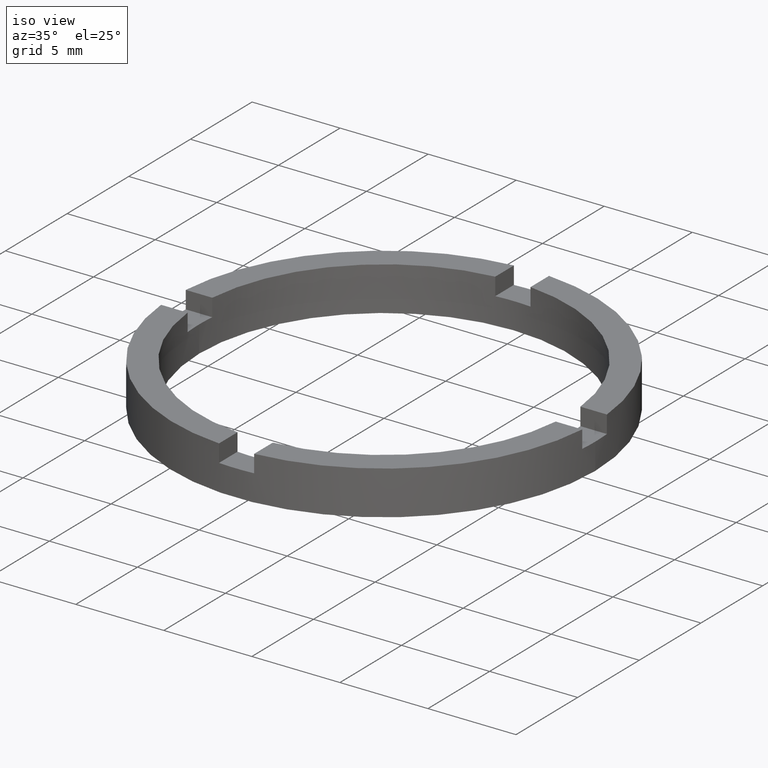
[diagram: clean part render]
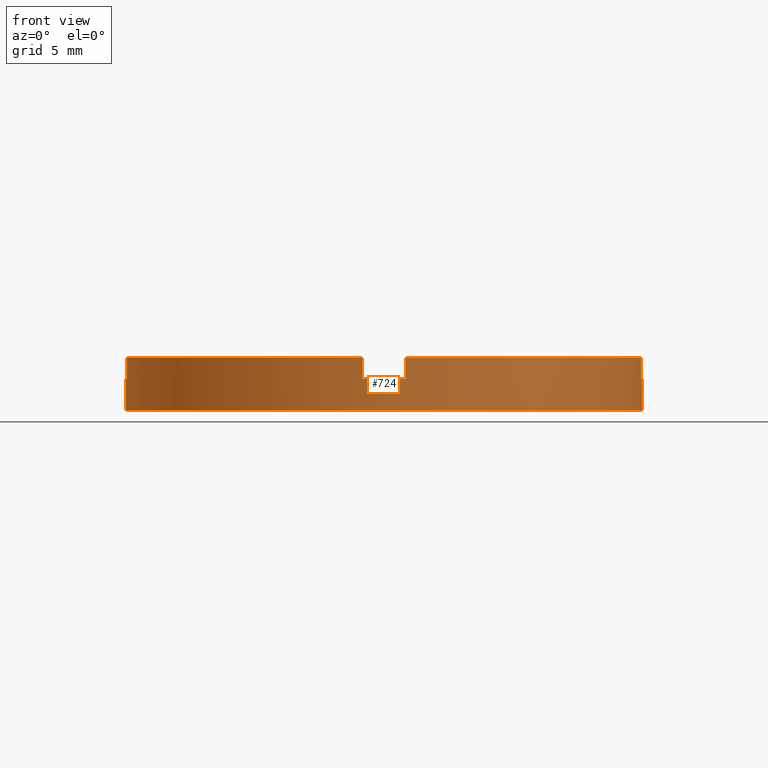
[diagram: tour spotlight — one face highlighted and labeled with its STEP entity id]
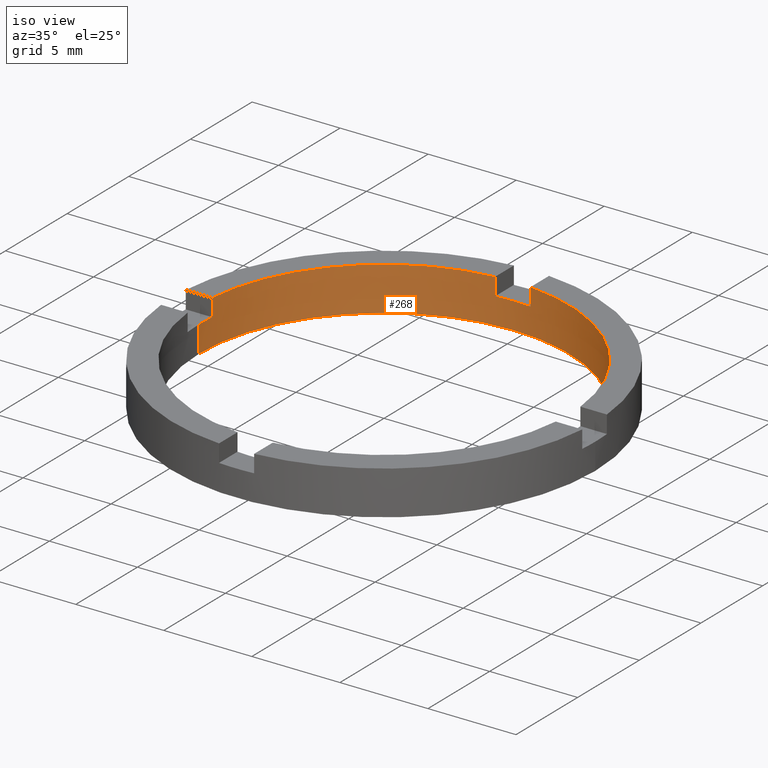
[diagram: tour spotlight — one face highlighted and labeled with its STEP entity id]
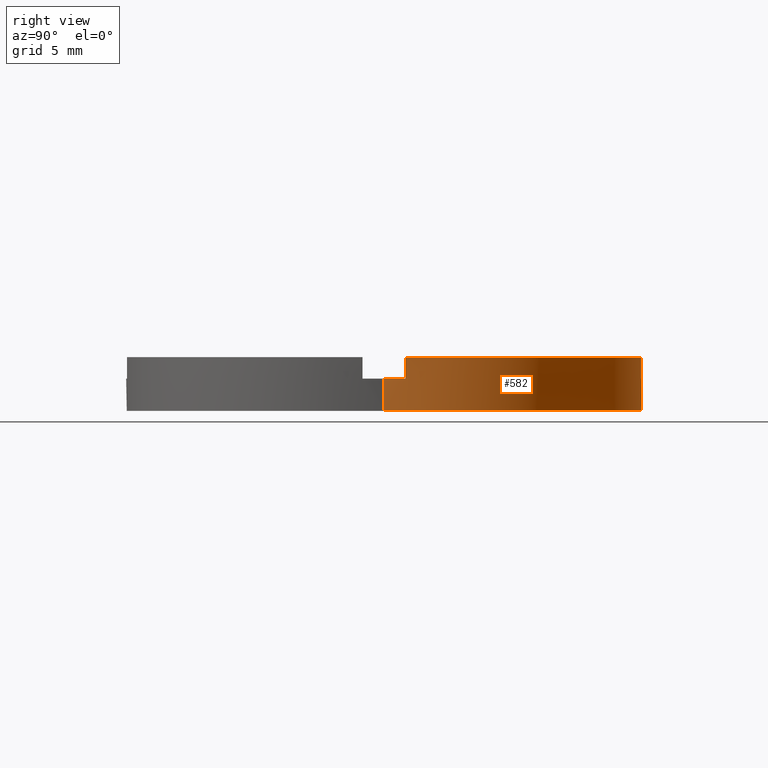
[diagram: tour spotlight — one face highlighted and labeled with its STEP entity id]
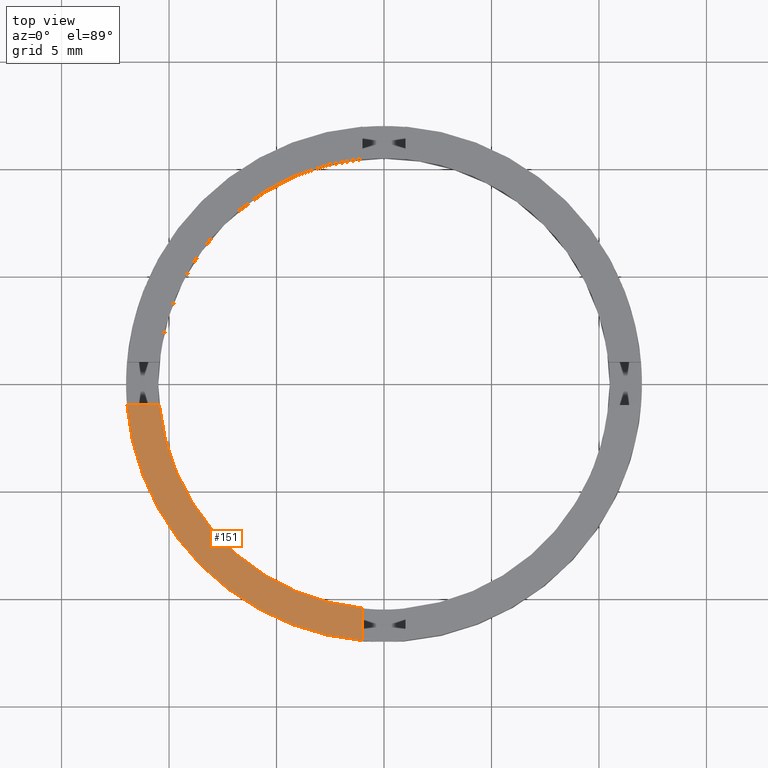
[diagram: tour spotlight — one face highlighted and labeled with its STEP entity id]
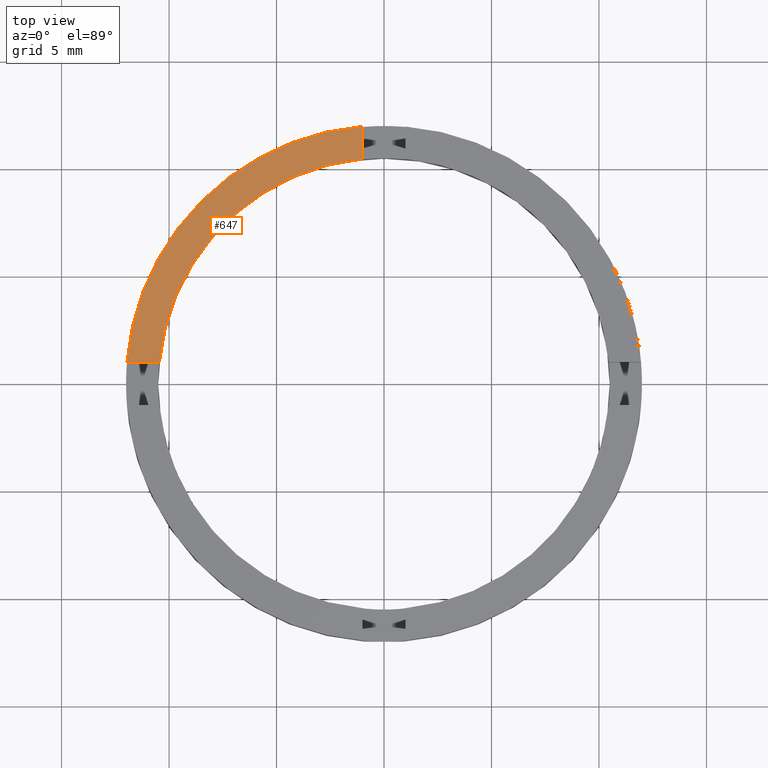
[diagram: tour spotlight — one face highlighted and labeled with its STEP entity id]
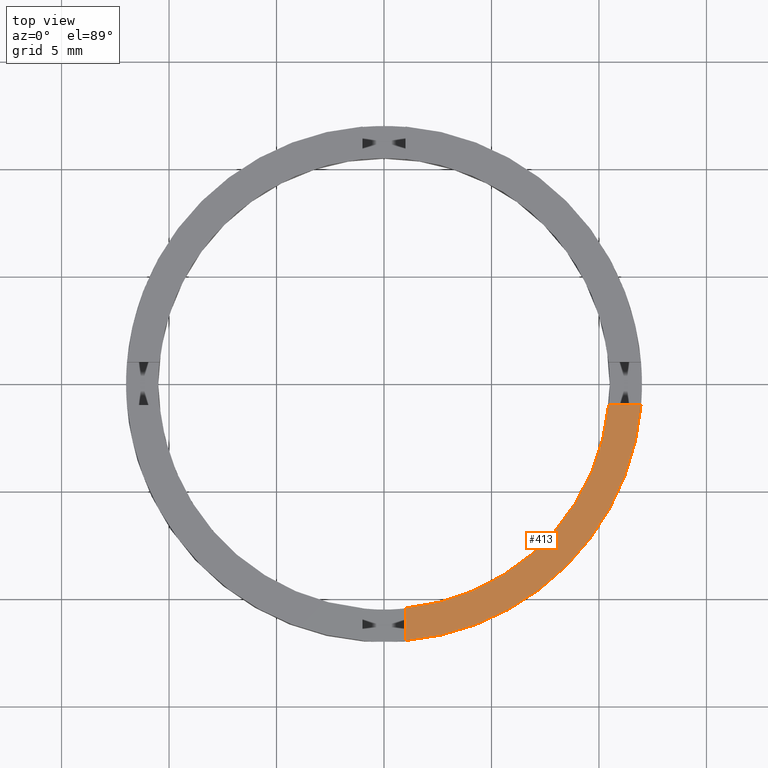
[diagram: tour spotlight — one face highlighted and labeled with its STEP entity id]
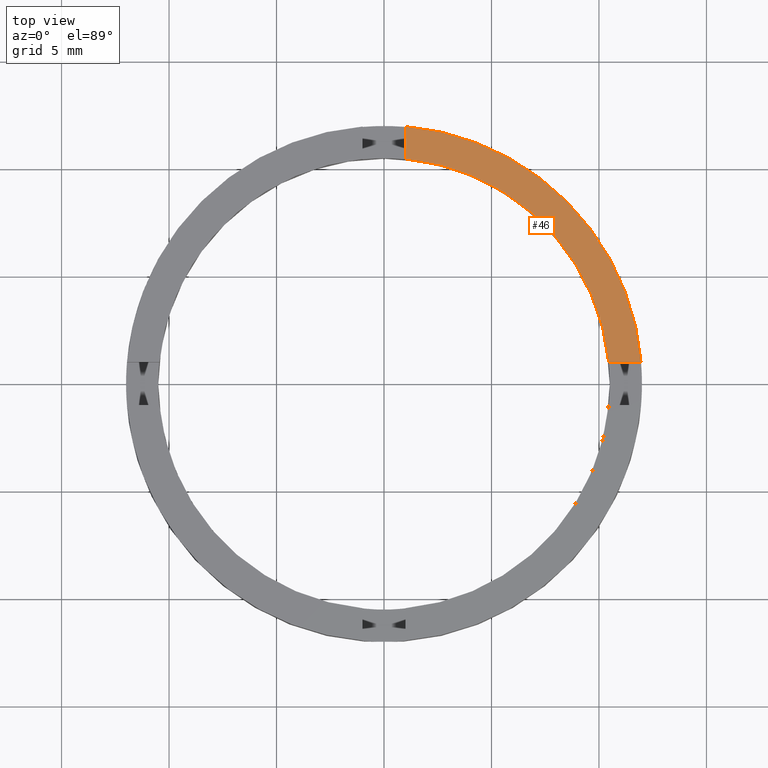
[diagram: tour spotlight — one face highlighted and labeled with its STEP entity id]
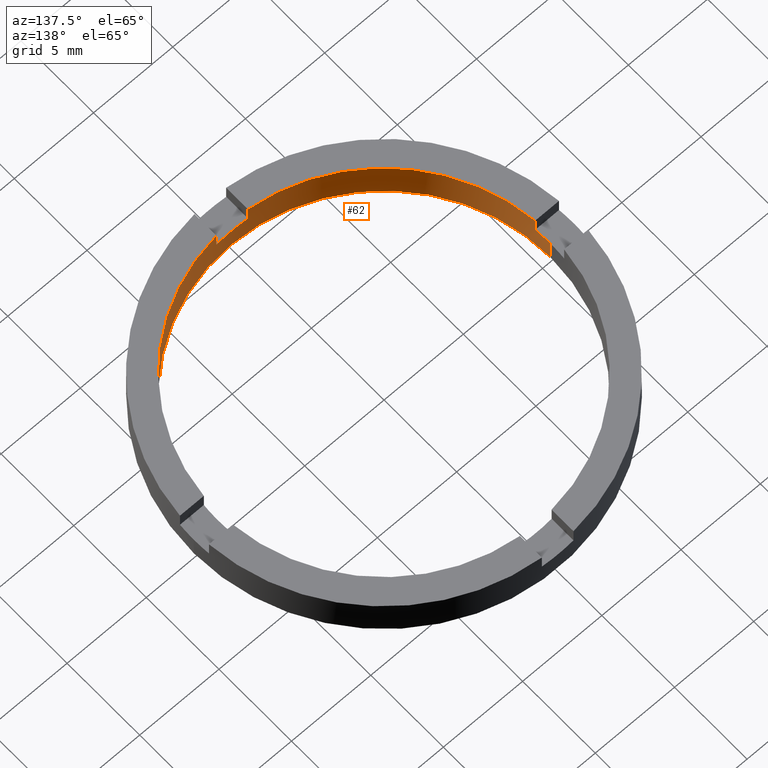
[diagram: tour spotlight — one face highlighted and labeled with its STEP entity id]
A machine part: a face-by-face anatomy tour. The part has 21 B-rep faces; the first image is the clean iso view, then the 8 largest visible faces are spotlighted one at a time (largest first), each with its STEP entity span.

Face 1 — front view, entity #724. In plain terms, the highlighted cylindrical surface (partial cylindrical patch) has radius 12 mm, axis along (-0, -0, -1).
Definition (entity closure, byte-faithful):
#5 = VERTEX_POINT ( 'NONE', #34 ) ;
#6 = CARTESIAN_POINT ( 'NONE',  ( 0.000000000000000000, 0.000000000000000000, 2.500000000000000000 ) ) ;
#15 = CIRCLE ( 'NONE', #560, 12.00000000000000178 ) ;
#18 = CYLINDRICAL_SURFACE ( 'NONE', #749, 12.00000000000000178 ) ;
#31 = FACE_OUTER_BOUND ( 'NONE', #100, .T. ) ;
#34 = CARTESIAN_POINT ( 'NONE',  ( 11.95826074310138765, -1.000000000000159872, 2.500000000000000000 ) ) ;
#70 = DIRECTION ( 'NONE',  ( -0.000000000000000000, -0.000000000000000000, -1.000000000000000000 ) ) ;
#80 = EDGE_CURVE ( 'NONE', #114, #352, #141, .T. ) ;
#84 = DIRECTION ( 'NONE',  ( 0.000000000000000000, 0.000000000000000000, 1.000000000000000000 ) ) ;
#86 = AXIS2_PLACEMENT_3D ( 'NONE', #6, #546, #194 ) ;
#91 = CARTESIAN_POINT ( 'NONE',  ( 0.000000000000000000, 0.000000000000000000, 2.500000000000000000 ) ) ;
#95 = CARTESIAN_POINT ( 'NONE',  ( -12.00000000000000178, 0.000000000000000000, 0.000000000000000000 ) ) ;
#99 = CARTESIAN_POINT ( 'NONE',  ( -11.95826074310139830, -1.000000000000022204, 2.500000000000000000 ) ) ;
#100 = EDGE_LOOP ( 'NONE', ( #773, #508, #345, #105, #613, #255, #623, #459, #248, #189, #411, #259 ) ) ;
#105 = ORIENTED_EDGE ( 'NONE', *, *, #373, .F. ) ;
#106 = CARTESIAN_POINT ( 'NONE',  ( 0.9999999999998363531, -11.95826074310141429, 1.500000000000000000 ) ) ;
#108 = CARTESIAN_POINT ( 'NONE',  ( 11.95826074310138765, -1.000000000000159872, 2.500000000000000000 ) ) ;
#114 = VERTEX_POINT ( 'NONE', #570 ) ;
#133 = CARTESIAN_POINT ( 'NONE',  ( -12.00000000000000178, 0.000000000000000000, 2.500000000000000000 ) ) ;
#135 = LINE ( 'NONE', #339, #153 ) ;
#140 = CIRCLE ( 'NONE', #86, 12.00000000000000178 ) ;
#141 = CIRCLE ( 'NONE', #654, 12.00000000000000178 ) ;
#153 = VECTOR ( 'NONE', #500, 1000.000000000000000 ) ;
#165 = VECTOR ( 'NONE', #70, 1000.000000000000000 ) ;
#175 = VERTEX_POINT ( 'NONE', #235 ) ;
#189 = ORIENTED_EDGE ( 'NONE', *, *, #309, .F. ) ;
#193 = DIRECTION ( 'NONE',  ( -0.000000000000000000, -0.000000000000000000, -1.000000000000000000 ) ) ;
#194 = DIRECTION ( 'NONE',  ( 1.000000000000000000, 0.000000000000000000, 0.000000000000000000 ) ) ;
#201 = DIRECTION ( 'NONE',  ( 0.000000000000000000, 0.000000000000000000, 1.000000000000000000 ) ) ;
#224 = CARTESIAN_POINT ( 'NONE',  ( -12.00000000000000178, 0.000000000000000000, 1.500000000000000000 ) ) ;
#231 = DIRECTION ( 'NONE',  ( 0.000000000000000000, 0.000000000000000000, 1.000000000000000000 ) ) ;
#233 = AXIS2_PLACEMENT_3D ( 'NONE', #502, #515, #572 ) ;
#234 = VERTEX_POINT ( 'NONE', #629 ) ;
#235 = CARTESIAN_POINT ( 'NONE',  ( -1.000000000000163647, -11.95826074310138765, 2.500000000000000000 ) ) ;
#238 = DIRECTION ( 'NONE',  ( -1.000000000000000000, 0.000000000000000000, 0.000000000000000000 ) ) ;
#248 = ORIENTED_EDGE ( 'NONE', *, *, #466, .T. ) ;
#255 = ORIENTED_EDGE ( 'NONE', *, *, #80, .F. ) ;
#259 = ORIENTED_EDGE ( 'NONE', *, *, #750, .T. ) ;
#269 = VERTEX_POINT ( 'NONE', #523 ) ;
#271 = VERTEX_POINT ( 'NONE', #224 ) ;
#277 = DIRECTION ( 'NONE',  ( -0.000000000000000000, 0.000000000000000000, 1.000000000000000000 ) ) ;
#284 = EDGE_CURVE ( 'NONE', #234, #5, #669, .T. ) ;
#290 = AXIS2_PLACEMENT_3D ( 'NONE', #91, #297, #335 ) ;
#297 = DIRECTION ( 'NONE',  ( 0.000000000000000000, 0.000000000000000000, 1.000000000000000000 ) ) ;
#301 = CARTESIAN_POINT ( 'NONE',  ( 0.000000000000000000, 0.000000000000000000, 2.500000000000000000 ) ) ;
#303 = DIRECTION ( 'NONE',  ( 1.000000000000000000, 0.000000000000000000, 0.000000000000000000 ) ) ;
#309 = EDGE_CURVE ( 'NONE', #271, #269, #676, .T. ) ;
#310 = LINE ( 'NONE', #573, #568 ) ;
#319 = EDGE_CURVE ( 'NONE', #357, #175, #410, .T. ) ;
#334 = CARTESIAN_POINT ( 'NONE',  ( 12.00000000000000178, 1.469576158976824144E-15, 0.000000000000000000 ) ) ;
#335 = DIRECTION ( 'NONE',  ( 1.000000000000000000, 0.000000000000000000, 0.000000000000000000 ) ) ;
#339 = CARTESIAN_POINT ( 'NONE',  ( 0.9999999999998363531, -11.95826074310141429, 2.500000000000000000 ) ) ;
#345 = ORIENTED_EDGE ( 'NONE', *, *, #284, .T. ) ;
#352 = VERTEX_POINT ( 'NONE', #106 ) ;
#357 = VERTEX_POINT ( 'NONE', #99 ) ;
#373 = EDGE_CURVE ( 'NONE', #607, #5, #140, .T. ) ;
#380 = EDGE_CURVE ( 'NONE', #607, #352, #135, .T. ) ;
#386 = LINE ( 'NONE', #133, #653 ) ;
#410 = CIRCLE ( 'NONE', #290, 12.00000000000000178 ) ;
#411 = ORIENTED_EDGE ( 'NONE', *, *, #571, .T. ) ;
#440 = CIRCLE ( 'NONE', #233, 12.00000000000000178 ) ;
#459 = ORIENTED_EDGE ( 'NONE', *, *, #319, .F. ) ;
#461 = VERTEX_POINT ( 'NONE', #95 ) ;
#466 = EDGE_CURVE ( 'NONE', #357, #269, #683, .T. ) ;
#471 = VECTOR ( 'NONE', #231, 1000.000000000000000 ) ;
#492 = CARTESIAN_POINT ( 'NONE',  ( -11.95826074310139830, -1.000000000000022204, 2.500000000000000000 ) ) ;
#500 = DIRECTION ( 'NONE',  ( -0.000000000000000000, -0.000000000000000000, -1.000000000000000000 ) ) ;
#502 = CARTESIAN_POINT ( 'NONE',  ( 0.000000000000000000, 0.000000000000000000, 1.500000000000000000 ) ) ;
#508 = ORIENTED_EDGE ( 'NONE', *, *, #536, .F. ) ;
#513 = CARTESIAN_POINT ( 'NONE',  ( 0.000000000000000000, 0.000000000000000000, 1.500000000000000000 ) ) ;
#515 = DIRECTION ( 'NONE',  ( 0.000000000000000000, 0.000000000000000000, 1.000000000000000000 ) ) ;
#523 = CARTESIAN_POINT ( 'NONE',  ( -11.95826074310139830, -1.000000000000022204, 1.500000000000000000 ) ) ;
#536 = EDGE_CURVE ( 'NONE', #234, #604, #440, .T. ) ;
#546 = DIRECTION ( 'NONE',  ( 0.000000000000000000, 0.000000000000000000, 1.000000000000000000 ) ) ;
#549 = CARTESIAN_POINT ( 'NONE',  ( 0.000000000000000000, 0.000000000000000000, 0.000000000000000000 ) ) ;
#560 = AXIS2_PLACEMENT_3D ( 'NONE', #549, #594, #303 ) ;
#565 = DIRECTION ( 'NONE',  ( 1.000000000000000000, 0.000000000000000000, 0.000000000000000000 ) ) ;
#568 = VECTOR ( 'NONE', #767, 1000.000000000000000 ) ;
#570 = CARTESIAN_POINT ( 'NONE',  ( -1.000000000000163647, -11.95826074310138765, 1.500000000000000000 ) ) ;
#571 = EDGE_CURVE ( 'NONE', #271, #461, #386, .T. ) ;
#572 = DIRECTION ( 'NONE',  ( 1.000000000000000000, 0.000000000000000000, 0.000000000000000000 ) ) ;
#573 = CARTESIAN_POINT ( 'NONE',  ( 12.00000000000000178, 1.469576158976824144E-15, 2.500000000000000000 ) ) ;
#590 = AXIS2_PLACEMENT_3D ( 'NONE', #596, #84, #652 ) ;
#594 = DIRECTION ( 'NONE',  ( 0.000000000000000000, 0.000000000000000000, 1.000000000000000000 ) ) ;
#595 = EDGE_CURVE ( 'NONE', #114, #175, #734, .T. ) ;
#596 = CARTESIAN_POINT ( 'NONE',  ( 0.000000000000000000, 0.000000000000000000, 1.500000000000000000 ) ) ;
#604 = VERTEX_POINT ( 'NONE', #636 ) ;
#607 = VERTEX_POINT ( 'NONE', #769 ) ;
#613 = ORIENTED_EDGE ( 'NONE', *, *, #380, .T. ) ;
#614 = CARTESIAN_POINT ( 'NONE',  ( -1.000000000000163647, -11.95826074310138765, 2.500000000000000000 ) ) ;
#623 = ORIENTED_EDGE ( 'NONE', *, *, #595, .T. ) ;
#627 = DIRECTION ( 'NONE',  ( -0.000000000000000000, -0.000000000000000000, -1.000000000000000000 ) ) ;
#629 = CARTESIAN_POINT ( 'NONE',  ( 11.95826074310138765, -1.000000000000159872, 1.500000000000000000 ) ) ;
#636 = CARTESIAN_POINT ( 'NONE',  ( 12.00000000000000178, 1.469576158976824144E-15, 1.500000000000000000 ) ) ;
#652 = DIRECTION ( 'NONE',  ( 1.000000000000000000, 0.000000000000000000, 0.000000000000000000 ) ) ;
#653 = VECTOR ( 'NONE', #627, 1000.000000000000000 ) ;
#654 = AXIS2_PLACEMENT_3D ( 'NONE', #513, #277, #565 ) ;
#656 = EDGE_CURVE ( 'NONE', #604, #710, #310, .T. ) ;
#669 = LINE ( 'NONE', #108, #701 ) ;
#676 = CIRCLE ( 'NONE', #590, 12.00000000000000178 ) ;
#683 = LINE ( 'NONE', #492, #165 ) ;
#701 = VECTOR ( 'NONE', #201, 1000.000000000000000 ) ;
#710 = VERTEX_POINT ( 'NONE', #334 ) ;
#724 = ADVANCED_FACE ( 'NONE', ( #31 ), #18, .T. ) ;
#734 = LINE ( 'NONE', #614, #471 ) ;
#749 = AXIS2_PLACEMENT_3D ( 'NONE', #301, #193, #238 ) ;
#750 = EDGE_CURVE ( 'NONE', #461, #710, #15, .T. ) ;
#767 = DIRECTION ( 'NONE',  ( -0.000000000000000000, -0.000000000000000000, -1.000000000000000000 ) ) ;
#769 = CARTESIAN_POINT ( 'NONE',  ( 0.9999999999998363531, -11.95826074310141429, 2.500000000000000000 ) ) ;
#773 = ORIENTED_EDGE ( 'NONE', *, *, #656, .F. ) ;

Face 2 — iso view, entity #268. In plain terms, the highlighted cylindrical surface (partial cylindrical patch) has radius 10.5 mm, axis along (-0, -0, -1).
Definition (entity closure, byte-faithful):
#4 = EDGE_LOOP ( 'NONE', ( #707, #517, #603, #670, #394, #700, #346, #362, #524, #426, #630, #94 ) ) ;
#17 = CIRCLE ( 'NONE', #315, 10.49999999999999822 ) ;
#28 = EDGE_CURVE ( 'NONE', #535, #104, #402, .T. ) ;
#30 = EDGE_CURVE ( 'NONE', #216, #609, #451, .T. ) ;
#42 = AXIS2_PLACEMENT_3D ( 'NONE', #331, #478, #403 ) ;
#48 = DIRECTION ( 'NONE',  ( -0.000000000000000000, -0.000000000000000000, -1.000000000000000000 ) ) ;
#51 = AXIS2_PLACEMENT_3D ( 'NONE', #587, #545, #296 ) ;
#55 = DIRECTION ( 'NONE',  ( 0.000000000000000000, 0.000000000000000000, 1.000000000000000000 ) ) ;
#61 = CARTESIAN_POINT ( 'NONE',  ( -1.000000000000024425, 10.45227248018343325, 1.500000000000000000 ) ) ;
#72 = VERTEX_POINT ( 'NONE', #462 ) ;
#94 = ORIENTED_EDGE ( 'NONE', *, *, #443, .F. ) ;
#97 = VERTEX_POINT ( 'NONE', #61 ) ;
#98 = DIRECTION ( 'NONE',  ( 1.000000000000000000, 0.000000000000000000, 0.000000000000000000 ) ) ;
#101 = DIRECTION ( 'NONE',  ( 0.000000000000000000, 0.000000000000000000, 1.000000000000000000 ) ) ;
#104 = VERTEX_POINT ( 'NONE', #519 ) ;
#117 = CARTESIAN_POINT ( 'NONE',  ( -10.49999999999999822, 0.000000000000000000, 0.000000000000000000 ) ) ;
#120 = DIRECTION ( 'NONE',  ( 1.000000000000000000, 0.000000000000000000, 0.000000000000000000 ) ) ;
#122 = CIRCLE ( 'NONE', #42, 10.49999999999999822 ) ;
#129 = CYLINDRICAL_SURFACE ( 'NONE', #470, 10.49999999999999822 ) ;
#131 = VECTOR ( 'NONE', #723, 1000.000000000000000 ) ;
#147 = LINE ( 'NONE', #420, #399 ) ;
#150 = VECTOR ( 'NONE', #383, 1000.000000000000000 ) ;
#157 = VECTOR ( 'NONE', #55, 1000.000000000000000 ) ;
#160 = CIRCLE ( 'NONE', #267, 10.49999999999999822 ) ;
#167 = CARTESIAN_POINT ( 'NONE',  ( 0.000000000000000000, 0.000000000000000000, 1.500000000000000000 ) ) ;
#170 = VECTOR ( 'NONE', #209, 1000.000000000000000 ) ;
#179 = EDGE_CURVE ( 'NONE', #753, #610, #147, .T. ) ;
#192 = EDGE_CURVE ( 'NONE', #531, #454, #452, .T. ) ;
#198 = DIRECTION ( 'NONE',  ( 1.000000000000000000, 0.000000000000000000, 0.000000000000000000 ) ) ;
#209 = DIRECTION ( 'NONE',  ( -0.000000000000000000, -0.000000000000000000, -1.000000000000000000 ) ) ;
#216 = VERTEX_POINT ( 'NONE', #217 ) ;
#217 = CARTESIAN_POINT ( 'NONE',  ( 0.9999999999999754641, 10.45227248018343680, 1.500000000000000000 ) ) ;
#220 = EDGE_CURVE ( 'NONE', #72, #419, #393, .T. ) ;
#243 = VERTEX_POINT ( 'NONE', #391 ) ;
#267 = AXIS2_PLACEMENT_3D ( 'NONE', #591, #715, #736 ) ;
#268 = ADVANCED_FACE ( 'NONE', ( #692 ), #129, .F. ) ;
#282 = CIRCLE ( 'NONE', #51, 10.49999999999999822 ) ;
#283 = CARTESIAN_POINT ( 'NONE',  ( 0.9999999999999754641, 10.45227248018343680, 2.500000000000000000 ) ) ;
#285 = CIRCLE ( 'NONE', #429, 10.49999999999999822 ) ;
#296 = DIRECTION ( 'NONE',  ( 1.000000000000000000, 0.000000000000000000, 0.000000000000000000 ) ) ;
#308 = CARTESIAN_POINT ( 'NONE',  ( -10.45227248018343680, 0.9999999999999783507, 1.500000000000000000 ) ) ;
#315 = AXIS2_PLACEMENT_3D ( 'NONE', #167, #493, #98 ) ;
#316 = EDGE_CURVE ( 'NONE', #243, #97, #404, .T. ) ;
#331 = CARTESIAN_POINT ( 'NONE',  ( 0.000000000000000000, 0.000000000000000000, 1.500000000000000000 ) ) ;
#346 = ORIENTED_EDGE ( 'NONE', *, *, #316, .F. ) ;
#349 = CARTESIAN_POINT ( 'NONE',  ( 10.49999999999999822, 1.285879139104720633E-15, 1.500000000000000000 ) ) ;
#351 = AXIS2_PLACEMENT_3D ( 'NONE', #356, #556, #120 ) ;
#356 = CARTESIAN_POINT ( 'NONE',  ( 0.000000000000000000, 0.000000000000000000, 0.000000000000000000 ) ) ;
#362 = ORIENTED_EDGE ( 'NONE', *, *, #684, .T. ) ;
#383 = DIRECTION ( 'NONE',  ( 0.000000000000000000, 0.000000000000000000, 1.000000000000000000 ) ) ;
#387 = CIRCLE ( 'NONE', #351, 10.49999999999999822 ) ;
#391 = CARTESIAN_POINT ( 'NONE',  ( -1.000000000000024425, 10.45227248018343325, 2.500000000000000000 ) ) ;
#393 = LINE ( 'NONE', #406, #131 ) ;
#394 = ORIENTED_EDGE ( 'NONE', *, *, #30, .F. ) ;
#399 = VECTOR ( 'NONE', #586, 1000.000000000000000 ) ;
#402 = LINE ( 'NONE', #744, #170 ) ;
#403 = DIRECTION ( 'NONE',  ( 1.000000000000000000, 0.000000000000000000, 0.000000000000000000 ) ) ;
#404 = LINE ( 'NONE', #776, #434 ) ;
#406 = CARTESIAN_POINT ( 'NONE',  ( -10.49999999999999822, 0.000000000000000000, 2.500000000000000000 ) ) ;
#419 = VERTEX_POINT ( 'NONE', #117 ) ;
#420 = CARTESIAN_POINT ( 'NONE',  ( 10.45227248018345101, 0.9999999999998402389, 2.500000000000000000 ) ) ;
#426 = ORIENTED_EDGE ( 'NONE', *, *, #563, .T. ) ;
#429 = AXIS2_PLACEMENT_3D ( 'NONE', #733, #101, #198 ) ;
#434 = VECTOR ( 'NONE', #48, 1000.000000000000000 ) ;
#443 = EDGE_CURVE ( 'NONE', #104, #419, #387, .T. ) ;
#451 = LINE ( 'NONE', #458, #157 ) ;
#452 = LINE ( 'NONE', #494, #150 ) ;
#454 = VERTEX_POINT ( 'NONE', #726 ) ;
#458 = CARTESIAN_POINT ( 'NONE',  ( 0.9999999999999754641, 10.45227248018343680, 2.500000000000000000 ) ) ;
#462 = CARTESIAN_POINT ( 'NONE',  ( -10.49999999999999822, 0.000000000000000000, 1.500000000000000000 ) ) ;
#470 = AXIS2_PLACEMENT_3D ( 'NONE', #474, #768, #574 ) ;
#474 = CARTESIAN_POINT ( 'NONE',  ( 0.000000000000000000, 0.000000000000000000, 2.500000000000000000 ) ) ;
#476 = EDGE_CURVE ( 'NONE', #753, #609, #160, .T. ) ;
#478 = DIRECTION ( 'NONE',  ( 0.000000000000000000, 0.000000000000000000, 1.000000000000000000 ) ) ;
#493 = DIRECTION ( 'NONE',  ( 0.000000000000000000, -0.000000000000000000, 1.000000000000000000 ) ) ;
#494 = CARTESIAN_POINT ( 'NONE',  ( -10.45227248018343680, 0.9999999999999783507, 2.500000000000000000 ) ) ;
#517 = ORIENTED_EDGE ( 'NONE', *, *, #746, .T. ) ;
#519 = CARTESIAN_POINT ( 'NONE',  ( 10.49999999999999822, 1.285879139104720633E-15, 0.000000000000000000 ) ) ;
#524 = ORIENTED_EDGE ( 'NONE', *, *, #192, .F. ) ;
#531 = VERTEX_POINT ( 'NONE', #308 ) ;
#535 = VERTEX_POINT ( 'NONE', #349 ) ;
#545 = DIRECTION ( 'NONE',  ( 0.000000000000000000, 0.000000000000000000, 1.000000000000000000 ) ) ;
#556 = DIRECTION ( 'NONE',  ( 0.000000000000000000, 0.000000000000000000, 1.000000000000000000 ) ) ;
#563 = EDGE_CURVE ( 'NONE', #531, #72, #122, .T. ) ;
#574 = DIRECTION ( 'NONE',  ( -1.000000000000000000, 0.000000000000000000, 0.000000000000000000 ) ) ;
#586 = DIRECTION ( 'NONE',  ( -0.000000000000000000, -0.000000000000000000, -1.000000000000000000 ) ) ;
#587 = CARTESIAN_POINT ( 'NONE',  ( 0.000000000000000000, 0.000000000000000000, 2.500000000000000000 ) ) ;
#591 = CARTESIAN_POINT ( 'NONE',  ( 0.000000000000000000, 0.000000000000000000, 2.500000000000000000 ) ) ;
#603 = ORIENTED_EDGE ( 'NONE', *, *, #179, .F. ) ;
#609 = VERTEX_POINT ( 'NONE', #283 ) ;
#610 = VERTEX_POINT ( 'NONE', #706 ) ;
#630 = ORIENTED_EDGE ( 'NONE', *, *, #220, .T. ) ;
#670 = ORIENTED_EDGE ( 'NONE', *, *, #476, .T. ) ;
#679 = EDGE_CURVE ( 'NONE', #216, #97, #17, .T. ) ;
#684 = EDGE_CURVE ( 'NONE', #243, #454, #282, .T. ) ;
#692 = FACE_OUTER_BOUND ( 'NONE', #4, .T. ) ;
#700 = ORIENTED_EDGE ( 'NONE', *, *, #679, .T. ) ;
#706 = CARTESIAN_POINT ( 'NONE',  ( 10.45227248018345101, 0.9999999999998402389, 1.500000000000000000 ) ) ;
#707 = ORIENTED_EDGE ( 'NONE', *, *, #28, .F. ) ;
#715 = DIRECTION ( 'NONE',  ( 0.000000000000000000, 0.000000000000000000, 1.000000000000000000 ) ) ;
#723 = DIRECTION ( 'NONE',  ( -0.000000000000000000, -0.000000000000000000, -1.000000000000000000 ) ) ;
#726 = CARTESIAN_POINT ( 'NONE',  ( -10.45227248018343680, 0.9999999999999783507, 2.500000000000000000 ) ) ;
#733 = CARTESIAN_POINT ( 'NONE',  ( 0.000000000000000000, 0.000000000000000000, 1.500000000000000000 ) ) ;
#736 = DIRECTION ( 'NONE',  ( 1.000000000000000000, 0.000000000000000000, 0.000000000000000000 ) ) ;
#739 = CARTESIAN_POINT ( 'NONE',  ( 10.45227248018345101, 0.9999999999998402389, 2.500000000000000000 ) ) ;
#744 = CARTESIAN_POINT ( 'NONE',  ( 10.49999999999999822, 1.285879139104720633E-15, 2.500000000000000000 ) ) ;
#746 = EDGE_CURVE ( 'NONE', #535, #610, #285, .T. ) ;
#753 = VERTEX_POINT ( 'NONE', #739 ) ;
#768 = DIRECTION ( 'NONE',  ( -0.000000000000000000, -0.000000000000000000, -1.000000000000000000 ) ) ;
#776 = CARTESIAN_POINT ( 'NONE',  ( -1.000000000000024425, 10.45227248018343325, 2.500000000000000000 ) ) ;

Face 3 — right view, entity #582. In plain terms, the highlighted cylindrical surface (partial cylindrical patch) has radius 12 mm, axis along (-0, -0, -1).
Definition (entity closure, byte-faithful):
#20 = VECTOR ( 'NONE', #90, 1000.000000000000000 ) ;
#21 = DIRECTION ( 'NONE',  ( 1.000000000000000000, 0.000000000000000000, 0.000000000000000000 ) ) ;
#22 = DIRECTION ( 'NONE',  ( -1.000000000000000000, 0.000000000000000000, 0.000000000000000000 ) ) ;
#25 = DIRECTION ( 'NONE',  ( 0.000000000000000000, 0.000000000000000000, 1.000000000000000000 ) ) ;
#27 = DIRECTION ( 'NONE',  ( 0.000000000000000000, 0.000000000000000000, 1.000000000000000000 ) ) ;
#29 = CARTESIAN_POINT ( 'NONE',  ( 0.9999999999999754641, 11.95826074310140363, 2.500000000000000000 ) ) ;
#35 = VECTOR ( 'NONE', #581, 1000.000000000000000 ) ;
#38 = CARTESIAN_POINT ( 'NONE',  ( -11.95826074310140186, 0.9999999999999779066, 2.500000000000000000 ) ) ;
#44 = DIRECTION ( 'NONE',  ( 0.000000000000000000, 0.000000000000000000, 1.000000000000000000 ) ) ;
#63 = CARTESIAN_POINT ( 'NONE',  ( 0.000000000000000000, 0.000000000000000000, 2.500000000000000000 ) ) ;
#66 = DIRECTION ( 'NONE',  ( -0.000000000000000000, -0.000000000000000000, -1.000000000000000000 ) ) ;
#81 = VERTEX_POINT ( 'NONE', #611 ) ;
#90 = DIRECTION ( 'NONE',  ( -0.000000000000000000, -0.000000000000000000, -1.000000000000000000 ) ) ;
#93 = EDGE_CURVE ( 'NONE', #604, #264, #441, .T. ) ;
#95 = CARTESIAN_POINT ( 'NONE',  ( -12.00000000000000178, 0.000000000000000000, 0.000000000000000000 ) ) ;
#124 = LINE ( 'NONE', #178, #446 ) ;
#127 = CIRCLE ( 'NONE', #742, 12.00000000000000178 ) ;
#133 = CARTESIAN_POINT ( 'NONE',  ( -12.00000000000000178, 0.000000000000000000, 2.500000000000000000 ) ) ;
#143 = CIRCLE ( 'NONE', #597, 12.00000000000000178 ) ;
#144 = VECTOR ( 'NONE', #332, 1000.000000000000000 ) ;
#166 = LINE ( 'NONE', #38, #144 ) ;
#178 = CARTESIAN_POINT ( 'NONE',  ( 11.95826074310141429, 0.9999999999998402389, 2.500000000000000000 ) ) ;
#182 = VERTEX_POINT ( 'NONE', #29 ) ;
#195 = ORIENTED_EDGE ( 'NONE', *, *, #656, .T. ) ;
#203 = CARTESIAN_POINT ( 'NONE',  ( -1.000000000000024425, 11.95826074310139830, 2.500000000000000000 ) ) ;
#210 = CIRCLE ( 'NONE', #395, 12.00000000000000178 ) ;
#214 = EDGE_CURVE ( 'NONE', #237, #375, #166, .T. ) ;
#221 = ORIENTED_EDGE ( 'NONE', *, *, #561, .T. ) ;
#224 = CARTESIAN_POINT ( 'NONE',  ( -12.00000000000000178, 0.000000000000000000, 1.500000000000000000 ) ) ;
#237 = VERTEX_POINT ( 'NONE', #717 ) ;
#254 = CARTESIAN_POINT ( 'NONE',  ( 0.000000000000000000, 0.000000000000000000, 0.000000000000000000 ) ) ;
#264 = VERTEX_POINT ( 'NONE', #488 ) ;
#271 = VERTEX_POINT ( 'NONE', #224 ) ;
#278 = DIRECTION ( 'NONE',  ( 1.000000000000000000, 0.000000000000000000, 0.000000000000000000 ) ) ;
#288 = DIRECTION ( 'NONE',  ( 1.000000000000000000, 0.000000000000000000, 0.000000000000000000 ) ) ;
#294 = EDGE_CURVE ( 'NONE', #710, #461, #143, .T. ) ;
#299 = LINE ( 'NONE', #333, #35 ) ;
#302 = CARTESIAN_POINT ( 'NONE',  ( -11.95826074310140186, 0.9999999999999779066, 2.500000000000000000 ) ) ;
#310 = LINE ( 'NONE', #573, #568 ) ;
#314 = AXIS2_PLACEMENT_3D ( 'NONE', #702, #25, #21 ) ;
#328 = DIRECTION ( 'NONE',  ( 0.000000000000000000, -0.000000000000000000, 1.000000000000000000 ) ) ;
#332 = DIRECTION ( 'NONE',  ( 0.000000000000000000, 0.000000000000000000, 1.000000000000000000 ) ) ;
#333 = CARTESIAN_POINT ( 'NONE',  ( 0.9999999999999754641, 11.95826074310140363, 2.500000000000000000 ) ) ;
#334 = CARTESIAN_POINT ( 'NONE',  ( 12.00000000000000178, 1.469576158976824144E-15, 0.000000000000000000 ) ) ;
#337 = ORIENTED_EDGE ( 'NONE', *, *, #592, .F. ) ;
#342 = CARTESIAN_POINT ( 'NONE',  ( 11.95826074310141429, 0.9999999999998402389, 2.500000000000000000 ) ) ;
#367 = ORIENTED_EDGE ( 'NONE', *, *, #557, .F. ) ;
#370 = VERTEX_POINT ( 'NONE', #203 ) ;
#371 = ORIENTED_EDGE ( 'NONE', *, *, #599, .F. ) ;
#374 = DIRECTION ( 'NONE',  ( 0.000000000000000000, 0.000000000000000000, 1.000000000000000000 ) ) ;
#375 = VERTEX_POINT ( 'NONE', #302 ) ;
#378 = CARTESIAN_POINT ( 'NONE',  ( 0.000000000000000000, 0.000000000000000000, 2.500000000000000000 ) ) ;
#384 = FACE_OUTER_BOUND ( 'NONE', #487, .T. ) ;
#386 = LINE ( 'NONE', #133, #653 ) ;
#395 = AXIS2_PLACEMENT_3D ( 'NONE', #721, #567, #278 ) ;
#416 = CARTESIAN_POINT ( 'NONE',  ( -1.000000000000024425, 11.95826074310139830, 1.500000000000000000 ) ) ;
#441 = CIRCLE ( 'NONE', #314, 12.00000000000000178 ) ;
#446 = VECTOR ( 'NONE', #711, 1000.000000000000000 ) ;
#461 = VERTEX_POINT ( 'NONE', #95 ) ;
#483 = ORIENTED_EDGE ( 'NONE', *, *, #777, .T. ) ;
#487 = EDGE_LOOP ( 'NONE', ( #624, #195, #538, #751, #371, #766, #367, #757, #496, #483, #337, #221 ) ) ;
#488 = CARTESIAN_POINT ( 'NONE',  ( 11.95826074310141429, 0.9999999999998402389, 1.500000000000000000 ) ) ;
#496 = ORIENTED_EDGE ( 'NONE', *, *, #541, .F. ) ;
#516 = AXIS2_PLACEMENT_3D ( 'NONE', #63, #66, #22 ) ;
#521 = DIRECTION ( 'NONE',  ( 1.000000000000000000, 0.000000000000000000, 0.000000000000000000 ) ) ;
#528 = CARTESIAN_POINT ( 'NONE',  ( 0.000000000000000000, 0.000000000000000000, 1.500000000000000000 ) ) ;
#538 = ORIENTED_EDGE ( 'NONE', *, *, #294, .T. ) ;
#541 = EDGE_CURVE ( 'NONE', #81, #719, #697, .T. ) ;
#551 = LINE ( 'NONE', #648, #20 ) ;
#552 = AXIS2_PLACEMENT_3D ( 'NONE', #725, #328, #775 ) ;
#557 = EDGE_CURVE ( 'NONE', #370, #375, #127, .T. ) ;
#561 = EDGE_CURVE ( 'NONE', #763, #264, #124, .T. ) ;
#567 = DIRECTION ( 'NONE',  ( 0.000000000000000000, 0.000000000000000000, 1.000000000000000000 ) ) ;
#568 = VECTOR ( 'NONE', #767, 1000.000000000000000 ) ;
#571 = EDGE_CURVE ( 'NONE', #271, #461, #386, .T. ) ;
#573 = CARTESIAN_POINT ( 'NONE',  ( 12.00000000000000178, 1.469576158976824144E-15, 2.500000000000000000 ) ) ;
#581 = DIRECTION ( 'NONE',  ( 0.000000000000000000, 0.000000000000000000, 1.000000000000000000 ) ) ;
#582 = ADVANCED_FACE ( 'NONE', ( #384 ), #741, .T. ) ;
#592 = EDGE_CURVE ( 'NONE', #763, #182, #210, .T. ) ;
#597 = AXIS2_PLACEMENT_3D ( 'NONE', #254, #44, #598 ) ;
#598 = DIRECTION ( 'NONE',  ( 1.000000000000000000, 0.000000000000000000, 0.000000000000000000 ) ) ;
#599 = EDGE_CURVE ( 'NONE', #237, #271, #737, .T. ) ;
#604 = VERTEX_POINT ( 'NONE', #636 ) ;
#611 = CARTESIAN_POINT ( 'NONE',  ( 0.9999999999999754641, 11.95826074310140363, 1.500000000000000000 ) ) ;
#624 = ORIENTED_EDGE ( 'NONE', *, *, #93, .F. ) ;
#627 = DIRECTION ( 'NONE',  ( -0.000000000000000000, -0.000000000000000000, -1.000000000000000000 ) ) ;
#636 = CARTESIAN_POINT ( 'NONE',  ( 12.00000000000000178, 1.469576158976824144E-15, 1.500000000000000000 ) ) ;
#646 = AXIS2_PLACEMENT_3D ( 'NONE', #528, #374, #521 ) ;
#648 = CARTESIAN_POINT ( 'NONE',  ( -1.000000000000024425, 11.95826074310139830, 2.500000000000000000 ) ) ;
#653 = VECTOR ( 'NONE', #627, 1000.000000000000000 ) ;
#656 = EDGE_CURVE ( 'NONE', #604, #710, #310, .T. ) ;
#697 = CIRCLE ( 'NONE', #552, 12.00000000000000178 ) ;
#702 = CARTESIAN_POINT ( 'NONE',  ( 0.000000000000000000, 0.000000000000000000, 1.500000000000000000 ) ) ;
#710 = VERTEX_POINT ( 'NONE', #334 ) ;
#711 = DIRECTION ( 'NONE',  ( -0.000000000000000000, -0.000000000000000000, -1.000000000000000000 ) ) ;
#717 = CARTESIAN_POINT ( 'NONE',  ( -11.95826074310140186, 0.9999999999999779066, 1.500000000000000000 ) ) ;
#719 = VERTEX_POINT ( 'NONE', #416 ) ;
#721 = CARTESIAN_POINT ( 'NONE',  ( 0.000000000000000000, 0.000000000000000000, 2.500000000000000000 ) ) ;
#722 = EDGE_CURVE ( 'NONE', #370, #719, #551, .T. ) ;
#725 = CARTESIAN_POINT ( 'NONE',  ( 0.000000000000000000, 0.000000000000000000, 1.500000000000000000 ) ) ;
#737 = CIRCLE ( 'NONE', #646, 12.00000000000000178 ) ;
#741 = CYLINDRICAL_SURFACE ( 'NONE', #516, 12.00000000000000178 ) ;
#742 = AXIS2_PLACEMENT_3D ( 'NONE', #378, #27, #288 ) ;
#751 = ORIENTED_EDGE ( 'NONE', *, *, #571, .F. ) ;
#757 = ORIENTED_EDGE ( 'NONE', *, *, #722, .T. ) ;
#763 = VERTEX_POINT ( 'NONE', #342 ) ;
#766 = ORIENTED_EDGE ( 'NONE', *, *, #214, .T. ) ;
#767 = DIRECTION ( 'NONE',  ( -0.000000000000000000, -0.000000000000000000, -1.000000000000000000 ) ) ;
#775 = DIRECTION ( 'NONE',  ( 1.000000000000000000, 0.000000000000000000, 0.000000000000000000 ) ) ;
#777 = EDGE_CURVE ( 'NONE', #81, #182, #299, .T. ) ;

Face 4 — top view, entity #151. In plain terms, the highlighted planar face has unit normal (0, 0, 1).
Definition (entity closure, byte-faithful):
#14 = AXIS2_PLACEMENT_3D ( 'NONE', #145, #228, #484 ) ;
#37 = LINE ( 'NONE', #222, #566 ) ;
#54 = EDGE_CURVE ( 'NONE', #479, #175, #136, .T. ) ;
#64 = PLANE ( 'NONE',  #256 ) ;
#76 = ORIENTED_EDGE ( 'NONE', *, *, #319, .T. ) ;
#91 = CARTESIAN_POINT ( 'NONE',  ( 0.000000000000000000, 0.000000000000000000, 2.500000000000000000 ) ) ;
#99 = CARTESIAN_POINT ( 'NONE',  ( -11.95826074310139830, -1.000000000000022204, 2.500000000000000000 ) ) ;
#136 = LINE ( 'NONE', #364, #674 ) ;
#145 = CARTESIAN_POINT ( 'NONE',  ( 0.000000000000000000, 0.000000000000000000, 2.500000000000000000 ) ) ;
#151 = ADVANCED_FACE ( 'NONE', ( #705 ), #64, .T. ) ;
#171 = DIRECTION ( 'NONE',  ( 1.000000000000000000, 0.000000000000000000, -0.000000000000000000 ) ) ;
#175 = VERTEX_POINT ( 'NONE', #235 ) ;
#206 = CIRCLE ( 'NONE', #14, 10.49999999999999822 ) ;
#222 = CARTESIAN_POINT ( 'NONE',  ( -2.000000000000185629, -1.000000000000020428, 2.500000000000000000 ) ) ;
#227 = CARTESIAN_POINT ( 'NONE',  ( -1.000000000000163869, -10.45227248018341903, 2.500000000000000000 ) ) ;
#228 = DIRECTION ( 'NONE',  ( 0.000000000000000000, 0.000000000000000000, 1.000000000000000000 ) ) ;
#235 = CARTESIAN_POINT ( 'NONE',  ( -1.000000000000163647, -11.95826074310138765, 2.500000000000000000 ) ) ;
#246 = VERTEX_POINT ( 'NONE', #468 ) ;
#256 = AXIS2_PLACEMENT_3D ( 'NONE', #778, #323, #171 ) ;
#290 = AXIS2_PLACEMENT_3D ( 'NONE', #91, #297, #335 ) ;
#297 = DIRECTION ( 'NONE',  ( 0.000000000000000000, 0.000000000000000000, 1.000000000000000000 ) ) ;
#319 = EDGE_CURVE ( 'NONE', #357, #175, #410, .T. ) ;
#323 = DIRECTION ( 'NONE',  ( 0.000000000000000000, 0.000000000000000000, 1.000000000000000000 ) ) ;
#325 = DIRECTION ( 'NONE',  ( 1.301042606982605567E-16, -1.000000000000000000, 0.000000000000000000 ) ) ;
#326 = DIRECTION ( 'NONE',  ( 1.000000000000000000, 1.734723475976807341E-16, -0.000000000000000000 ) ) ;
#335 = DIRECTION ( 'NONE',  ( 1.000000000000000000, 0.000000000000000000, 0.000000000000000000 ) ) ;
#343 = ORIENTED_EDGE ( 'NONE', *, *, #641, .F. ) ;
#347 = EDGE_LOOP ( 'NONE', ( #358, #628, #343, #76 ) ) ;
#357 = VERTEX_POINT ( 'NONE', #99 ) ;
#358 = ORIENTED_EDGE ( 'NONE', *, *, #54, .F. ) ;
#364 = CARTESIAN_POINT ( 'NONE',  ( -1.000000000000164979, -2.000000000000182077, 2.500000000000000000 ) ) ;
#410 = CIRCLE ( 'NONE', #290, 12.00000000000000178 ) ;
#468 = CARTESIAN_POINT ( 'NONE',  ( -10.45227248018343325, -1.000000000000021760, 2.500000000000000000 ) ) ;
#479 = VERTEX_POINT ( 'NONE', #227 ) ;
#484 = DIRECTION ( 'NONE',  ( 1.000000000000000000, 0.000000000000000000, 0.000000000000000000 ) ) ;
#566 = VECTOR ( 'NONE', #326, 1000.000000000000000 ) ;
#612 = EDGE_CURVE ( 'NONE', #246, #479, #206, .T. ) ;
#628 = ORIENTED_EDGE ( 'NONE', *, *, #612, .F. ) ;
#641 = EDGE_CURVE ( 'NONE', #357, #246, #37, .T. ) ;
#674 = VECTOR ( 'NONE', #325, 1000.000000000000000 ) ;
#705 = FACE_OUTER_BOUND ( 'NONE', #347, .T. ) ;
#778 = CARTESIAN_POINT ( 'NONE',  ( 0.000000000000000000, 0.000000000000000000, 2.500000000000000000 ) ) ;

Face 5 — top view, entity #647. In plain terms, the highlighted planar face has unit normal (0, 0, 1).
Definition (entity closure, byte-faithful):
#11 = ORIENTED_EDGE ( 'NONE', *, *, #65, .F. ) ;
#27 = DIRECTION ( 'NONE',  ( 0.000000000000000000, 0.000000000000000000, 1.000000000000000000 ) ) ;
#40 = FACE_OUTER_BOUND ( 'NONE', #226, .T. ) ;
#51 = AXIS2_PLACEMENT_3D ( 'NONE', #587, #545, #296 ) ;
#65 = EDGE_CURVE ( 'NONE', #454, #375, #180, .T. ) ;
#127 = CIRCLE ( 'NONE', #742, 12.00000000000000178 ) ;
#180 = LINE ( 'NONE', #265, #691 ) ;
#184 = DIRECTION ( 'NONE',  ( -0.000000000000000000, -1.000000000000000000, -0.000000000000000000 ) ) ;
#203 = CARTESIAN_POINT ( 'NONE',  ( -1.000000000000024425, 11.95826074310139830, 2.500000000000000000 ) ) ;
#223 = ORIENTED_EDGE ( 'NONE', *, *, #557, .T. ) ;
#226 = EDGE_LOOP ( 'NONE', ( #639, #223, #11, #230 ) ) ;
#230 = ORIENTED_EDGE ( 'NONE', *, *, #684, .F. ) ;
#243 = VERTEX_POINT ( 'NONE', #391 ) ;
#265 = CARTESIAN_POINT ( 'NONE',  ( -2.000000000000185629, 0.9999999999999796829, 2.500000000000000000 ) ) ;
#282 = CIRCLE ( 'NONE', #51, 10.49999999999999822 ) ;
#288 = DIRECTION ( 'NONE',  ( 1.000000000000000000, 0.000000000000000000, 0.000000000000000000 ) ) ;
#296 = DIRECTION ( 'NONE',  ( 1.000000000000000000, 0.000000000000000000, 0.000000000000000000 ) ) ;
#302 = CARTESIAN_POINT ( 'NONE',  ( -11.95826074310140186, 0.9999999999999779066, 2.500000000000000000 ) ) ;
#366 = AXIS2_PLACEMENT_3D ( 'NONE', #382, #643, #472 ) ;
#370 = VERTEX_POINT ( 'NONE', #203 ) ;
#372 = DIRECTION ( 'NONE',  ( -1.000000000000000000, -1.734723475976807341E-16, 0.000000000000000000 ) ) ;
#375 = VERTEX_POINT ( 'NONE', #302 ) ;
#378 = CARTESIAN_POINT ( 'NONE',  ( 0.000000000000000000, 0.000000000000000000, 2.500000000000000000 ) ) ;
#382 = CARTESIAN_POINT ( 'NONE',  ( 0.000000000000000000, 0.000000000000000000, 2.500000000000000000 ) ) ;
#391 = CARTESIAN_POINT ( 'NONE',  ( -1.000000000000024425, 10.45227248018343325, 2.500000000000000000 ) ) ;
#396 = CARTESIAN_POINT ( 'NONE',  ( -1.000000000000024425, 2.000000000000001776, 2.500000000000000000 ) ) ;
#454 = VERTEX_POINT ( 'NONE', #726 ) ;
#472 = DIRECTION ( 'NONE',  ( 1.000000000000000000, 0.000000000000000000, -0.000000000000000000 ) ) ;
#501 = EDGE_CURVE ( 'NONE', #370, #243, #690, .T. ) ;
#545 = DIRECTION ( 'NONE',  ( 0.000000000000000000, 0.000000000000000000, 1.000000000000000000 ) ) ;
#557 = EDGE_CURVE ( 'NONE', #370, #375, #127, .T. ) ;
#583 = PLANE ( 'NONE',  #366 ) ;
#587 = CARTESIAN_POINT ( 'NONE',  ( 0.000000000000000000, 0.000000000000000000, 2.500000000000000000 ) ) ;
#639 = ORIENTED_EDGE ( 'NONE', *, *, #501, .F. ) ;
#643 = DIRECTION ( 'NONE',  ( 0.000000000000000000, 0.000000000000000000, 1.000000000000000000 ) ) ;
#647 = ADVANCED_FACE ( 'NONE', ( #40 ), #583, .T. ) ;
#684 = EDGE_CURVE ( 'NONE', #243, #454, #282, .T. ) ;
#690 = LINE ( 'NONE', #396, #694 ) ;
#691 = VECTOR ( 'NONE', #372, 1000.000000000000000 ) ;
#694 = VECTOR ( 'NONE', #184, 1000.000000000000000 ) ;
#726 = CARTESIAN_POINT ( 'NONE',  ( -10.45227248018343680, 0.9999999999999783507, 2.500000000000000000 ) ) ;
#742 = AXIS2_PLACEMENT_3D ( 'NONE', #378, #27, #288 ) ;

Face 6 — top view, entity #413. In plain terms, the highlighted planar face has unit normal (0, 0, 1).
Definition (entity closure, byte-faithful):
#5 = VERTEX_POINT ( 'NONE', #34 ) ;
#6 = CARTESIAN_POINT ( 'NONE',  ( 0.000000000000000000, 0.000000000000000000, 2.500000000000000000 ) ) ;
#7 = VERTEX_POINT ( 'NONE', #329 ) ;
#34 = CARTESIAN_POINT ( 'NONE',  ( 11.95826074310138765, -1.000000000000159872, 2.500000000000000000 ) ) ;
#86 = AXIS2_PLACEMENT_3D ( 'NONE', #6, #546, #194 ) ;
#92 = ORIENTED_EDGE ( 'NONE', *, *, #196, .F. ) ;
#140 = CIRCLE ( 'NONE', #86, 12.00000000000000178 ) ;
#163 = CIRCLE ( 'NONE', #205, 10.49999999999999822 ) ;
#194 = DIRECTION ( 'NONE',  ( 1.000000000000000000, 0.000000000000000000, 0.000000000000000000 ) ) ;
#196 = EDGE_CURVE ( 'NONE', #607, #779, #415, .T. ) ;
#200 = CARTESIAN_POINT ( 'NONE',  ( 0.000000000000000000, 0.000000000000000000, 2.500000000000000000 ) ) ;
#205 = AXIS2_PLACEMENT_3D ( 'NONE', #482, #305, #436 ) ;
#258 = EDGE_CURVE ( 'NONE', #7, #5, #673, .T. ) ;
#263 = EDGE_LOOP ( 'NONE', ( #266, #489, #92, #529 ) ) ;
#266 = ORIENTED_EDGE ( 'NONE', *, *, #258, .F. ) ;
#305 = DIRECTION ( 'NONE',  ( 0.000000000000000000, 0.000000000000000000, 1.000000000000000000 ) ) ;
#307 = DIRECTION ( 'NONE',  ( 0.000000000000000000, 0.000000000000000000, 1.000000000000000000 ) ) ;
#329 = CARTESIAN_POINT ( 'NONE',  ( 10.45227248018341903, -1.000000000000159872, 2.500000000000000000 ) ) ;
#373 = EDGE_CURVE ( 'NONE', #607, #5, #140, .T. ) ;
#413 = ADVANCED_FACE ( 'NONE', ( #418 ), #657, .T. ) ;
#415 = LINE ( 'NONE', #638, #693 ) ;
#418 = FACE_OUTER_BOUND ( 'NONE', #263, .T. ) ;
#430 = VECTOR ( 'NONE', #537, 1000.000000000000000 ) ;
#436 = DIRECTION ( 'NONE',  ( 1.000000000000000000, 0.000000000000000000, 0.000000000000000000 ) ) ;
#482 = CARTESIAN_POINT ( 'NONE',  ( 0.000000000000000000, 0.000000000000000000, 2.500000000000000000 ) ) ;
#489 = ORIENTED_EDGE ( 'NONE', *, *, #507, .F. ) ;
#507 = EDGE_CURVE ( 'NONE', #779, #7, #163, .T. ) ;
#529 = ORIENTED_EDGE ( 'NONE', *, *, #373, .T. ) ;
#530 = DIRECTION ( 'NONE',  ( -1.301042606982605567E-16, 1.000000000000000000, -0.000000000000000000 ) ) ;
#537 = DIRECTION ( 'NONE',  ( 1.000000000000000000, 4.336808689942018352E-17, 0.000000000000000000 ) ) ;
#539 = CARTESIAN_POINT ( 'NONE',  ( 0.9999999999998361311, -10.45227248018345101, 2.500000000000000000 ) ) ;
#546 = DIRECTION ( 'NONE',  ( 0.000000000000000000, 0.000000000000000000, 1.000000000000000000 ) ) ;
#569 = AXIS2_PLACEMENT_3D ( 'NONE', #200, #307, #748 ) ;
#607 = VERTEX_POINT ( 'NONE', #769 ) ;
#638 = CARTESIAN_POINT ( 'NONE',  ( 0.9999999999998350209, -2.000000000000182077, 2.500000000000000000 ) ) ;
#657 = PLANE ( 'NONE',  #569 ) ;
#673 = LINE ( 'NONE', #770, #430 ) ;
#693 = VECTOR ( 'NONE', #530, 1000.000000000000000 ) ;
#748 = DIRECTION ( 'NONE',  ( 1.000000000000000000, 0.000000000000000000, -0.000000000000000000 ) ) ;
#769 = CARTESIAN_POINT ( 'NONE',  ( 0.9999999999998363531, -11.95826074310141429, 2.500000000000000000 ) ) ;
#770 = CARTESIAN_POINT ( 'NONE',  ( 1.999999999999998224, -1.000000000000160316, 2.500000000000000000 ) ) ;
#779 = VERTEX_POINT ( 'NONE', #539 ) ;

Face 7 — top view, entity #46. In plain terms, the highlighted planar face has unit normal (0, 0, 1).
Definition (entity closure, byte-faithful):
#29 = CARTESIAN_POINT ( 'NONE',  ( 0.9999999999999754641, 11.95826074310140363, 2.500000000000000000 ) ) ;
#46 = ADVANCED_FACE ( 'NONE', ( #696 ), #262, .T. ) ;
#85 = EDGE_LOOP ( 'NONE', ( #107, #542, #111, #497 ) ) ;
#107 = ORIENTED_EDGE ( 'NONE', *, *, #330, .F. ) ;
#111 = ORIENTED_EDGE ( 'NONE', *, *, #453, .F. ) ;
#156 = LINE ( 'NONE', #602, #423 ) ;
#160 = CIRCLE ( 'NONE', #267, 10.49999999999999822 ) ;
#182 = VERTEX_POINT ( 'NONE', #29 ) ;
#210 = CIRCLE ( 'NONE', #395, 12.00000000000000178 ) ;
#215 = DIRECTION ( 'NONE',  ( 0.000000000000000000, 0.000000000000000000, 1.000000000000000000 ) ) ;
#262 = PLANE ( 'NONE',  #622 ) ;
#267 = AXIS2_PLACEMENT_3D ( 'NONE', #591, #715, #736 ) ;
#278 = DIRECTION ( 'NONE',  ( 1.000000000000000000, 0.000000000000000000, 0.000000000000000000 ) ) ;
#283 = CARTESIAN_POINT ( 'NONE',  ( 0.9999999999999754641, 10.45227248018343680, 2.500000000000000000 ) ) ;
#330 = EDGE_CURVE ( 'NONE', #609, #182, #414, .T. ) ;
#342 = CARTESIAN_POINT ( 'NONE',  ( 11.95826074310141429, 0.9999999999998402389, 2.500000000000000000 ) ) ;
#377 = CARTESIAN_POINT ( 'NONE',  ( 0.000000000000000000, 0.000000000000000000, 2.500000000000000000 ) ) ;
#395 = AXIS2_PLACEMENT_3D ( 'NONE', #721, #567, #278 ) ;
#414 = LINE ( 'NONE', #442, #651 ) ;
#423 = VECTOR ( 'NONE', #424, 1000.000000000000000 ) ;
#424 = DIRECTION ( 'NONE',  ( -1.000000000000000000, -4.336808689942018352E-17, -0.000000000000000000 ) ) ;
#442 = CARTESIAN_POINT ( 'NONE',  ( 0.9999999999999754641, 2.000000000000001776, 2.500000000000000000 ) ) ;
#453 = EDGE_CURVE ( 'NONE', #763, #753, #156, .T. ) ;
#476 = EDGE_CURVE ( 'NONE', #753, #609, #160, .T. ) ;
#497 = ORIENTED_EDGE ( 'NONE', *, *, #592, .T. ) ;
#542 = ORIENTED_EDGE ( 'NONE', *, *, #476, .F. ) ;
#567 = DIRECTION ( 'NONE',  ( 0.000000000000000000, 0.000000000000000000, 1.000000000000000000 ) ) ;
#591 = CARTESIAN_POINT ( 'NONE',  ( 0.000000000000000000, 0.000000000000000000, 2.500000000000000000 ) ) ;
#592 = EDGE_CURVE ( 'NONE', #763, #182, #210, .T. ) ;
#602 = CARTESIAN_POINT ( 'NONE',  ( 1.999999999999998224, 0.9999999999998397948, 2.500000000000000000 ) ) ;
#609 = VERTEX_POINT ( 'NONE', #283 ) ;
#622 = AXIS2_PLACEMENT_3D ( 'NONE', #377, #215, #672 ) ;
#651 = VECTOR ( 'NONE', #743, 1000.000000000000000 ) ;
#672 = DIRECTION ( 'NONE',  ( 1.000000000000000000, 0.000000000000000000, -0.000000000000000000 ) ) ;
#696 = FACE_OUTER_BOUND ( 'NONE', #85, .T. ) ;
#715 = DIRECTION ( 'NONE',  ( 0.000000000000000000, 0.000000000000000000, 1.000000000000000000 ) ) ;
#721 = CARTESIAN_POINT ( 'NONE',  ( 0.000000000000000000, 0.000000000000000000, 2.500000000000000000 ) ) ;
#736 = DIRECTION ( 'NONE',  ( 1.000000000000000000, 0.000000000000000000, 0.000000000000000000 ) ) ;
#739 = CARTESIAN_POINT ( 'NONE',  ( 10.45227248018345101, 0.9999999999998402389, 2.500000000000000000 ) ) ;
#743 = DIRECTION ( 'NONE',  ( 0.000000000000000000, 1.000000000000000000, 0.000000000000000000 ) ) ;
#753 = VERTEX_POINT ( 'NONE', #739 ) ;
#763 = VERTEX_POINT ( 'NONE', #342 ) ;

Face 8 — auxiliary view, entity #62. In plain terms, the highlighted cylindrical surface (partial cylindrical patch) has radius 10.5 mm, axis along (-0, -0, -1).
Definition (entity closure, byte-faithful):
#7 = VERTEX_POINT ( 'NONE', #329 ) ;
#10 = VERTEX_POINT ( 'NONE', #75 ) ;
#14 = AXIS2_PLACEMENT_3D ( 'NONE', #145, #228, #484 ) ;
#28 = EDGE_CURVE ( 'NONE', #535, #104, #402, .T. ) ;
#52 = DIRECTION ( 'NONE',  ( 1.000000000000000000, 0.000000000000000000, 0.000000000000000000 ) ) ;
#60 = AXIS2_PLACEMENT_3D ( 'NONE', #83, #577, #270 ) ;
#62 = ADVANCED_FACE ( 'NONE', ( #665 ), #154, .F. ) ;
#68 = CARTESIAN_POINT ( 'NONE',  ( 0.000000000000000000, 0.000000000000000000, 0.000000000000000000 ) ) ;
#72 = VERTEX_POINT ( 'NONE', #462 ) ;
#73 = AXIS2_PLACEMENT_3D ( 'NONE', #68, #649, #732 ) ;
#75 = CARTESIAN_POINT ( 'NONE',  ( 0.9999999999998361311, -10.45227248018345101, 1.500000000000000000 ) ) ;
#78 = EDGE_LOOP ( 'NONE', ( #88, #522, #616, #632, #102, #363, #712, #457, #188, #187, #348, #250 ) ) ;
#79 = CARTESIAN_POINT ( 'NONE',  ( -1.000000000000163869, -10.45227248018341903, 1.500000000000000000 ) ) ;
#83 = CARTESIAN_POINT ( 'NONE',  ( 0.000000000000000000, 0.000000000000000000, 1.500000000000000000 ) ) ;
#88 = ORIENTED_EDGE ( 'NONE', *, *, #585, .T. ) ;
#102 = ORIENTED_EDGE ( 'NONE', *, *, #311, .T. ) ;
#104 = VERTEX_POINT ( 'NONE', #519 ) ;
#117 = CARTESIAN_POINT ( 'NONE',  ( -10.49999999999999822, 0.000000000000000000, 0.000000000000000000 ) ) ;
#118 = EDGE_CURVE ( 'NONE', #246, #544, #448, .T. ) ;
#125 = EDGE_CURVE ( 'NONE', #779, #10, #449, .T. ) ;
#131 = VECTOR ( 'NONE', #723, 1000.000000000000000 ) ;
#132 = CIRCLE ( 'NONE', #73, 10.49999999999999822 ) ;
#138 = AXIS2_PLACEMENT_3D ( 'NONE', #548, #738, #52 ) ;
#145 = CARTESIAN_POINT ( 'NONE',  ( 0.000000000000000000, 0.000000000000000000, 2.500000000000000000 ) ) ;
#154 = CYLINDRICAL_SURFACE ( 'NONE', #450, 10.49999999999999822 ) ;
#163 = CIRCLE ( 'NONE', #205, 10.49999999999999822 ) ;
#169 = CIRCLE ( 'NONE', #279, 10.49999999999999822 ) ;
#170 = VECTOR ( 'NONE', #209, 1000.000000000000000 ) ;
#187 = ORIENTED_EDGE ( 'NONE', *, *, #125, .F. ) ;
#188 = ORIENTED_EDGE ( 'NONE', *, *, #281, .T. ) ;
#205 = AXIS2_PLACEMENT_3D ( 'NONE', #482, #305, #436 ) ;
#206 = CIRCLE ( 'NONE', #14, 10.49999999999999822 ) ;
#207 = EDGE_CURVE ( 'NONE', #419, #104, #132, .T. ) ;
#209 = DIRECTION ( 'NONE',  ( -0.000000000000000000, -0.000000000000000000, -1.000000000000000000 ) ) ;
#220 = EDGE_CURVE ( 'NONE', #72, #419, #393, .T. ) ;
#227 = CARTESIAN_POINT ( 'NONE',  ( -1.000000000000163869, -10.45227248018341903, 2.500000000000000000 ) ) ;
#228 = DIRECTION ( 'NONE',  ( 0.000000000000000000, 0.000000000000000000, 1.000000000000000000 ) ) ;
#232 = CARTESIAN_POINT ( 'NONE',  ( 0.000000000000000000, 0.000000000000000000, 1.500000000000000000 ) ) ;
#246 = VERTEX_POINT ( 'NONE', #468 ) ;
#250 = ORIENTED_EDGE ( 'NONE', *, *, #439, .F. ) ;
#257 = CARTESIAN_POINT ( 'NONE',  ( 10.45227248018341903, -1.000000000000159872, 2.500000000000000000 ) ) ;
#270 = DIRECTION ( 'NONE',  ( 1.000000000000000000, 0.000000000000000000, 0.000000000000000000 ) ) ;
#279 = AXIS2_PLACEMENT_3D ( 'NONE', #232, #504, #289 ) ;
#281 = EDGE_CURVE ( 'NONE', #455, #10, #389, .T. ) ;
#289 = DIRECTION ( 'NONE',  ( 1.000000000000000000, 0.000000000000000000, 0.000000000000000000 ) ) ;
#305 = DIRECTION ( 'NONE',  ( 0.000000000000000000, 0.000000000000000000, 1.000000000000000000 ) ) ;
#311 = EDGE_CURVE ( 'NONE', #72, #544, #169, .T. ) ;
#313 = DIRECTION ( 'NONE',  ( 0.000000000000000000, 0.000000000000000000, 1.000000000000000000 ) ) ;
#327 = CARTESIAN_POINT ( 'NONE',  ( -10.45227248018343325, -1.000000000000021760, 2.500000000000000000 ) ) ;
#329 = CARTESIAN_POINT ( 'NONE',  ( 10.45227248018341903, -1.000000000000159872, 2.500000000000000000 ) ) ;
#348 = ORIENTED_EDGE ( 'NONE', *, *, #507, .T. ) ;
#349 = CARTESIAN_POINT ( 'NONE',  ( 10.49999999999999822, 1.285879139104720633E-15, 1.500000000000000000 ) ) ;
#354 = VERTEX_POINT ( 'NONE', #417 ) ;
#363 = ORIENTED_EDGE ( 'NONE', *, *, #118, .F. ) ;
#385 = CARTESIAN_POINT ( 'NONE',  ( -1.000000000000163869, -10.45227248018341903, 2.500000000000000000 ) ) ;
#389 = CIRCLE ( 'NONE', #138, 10.49999999999999822 ) ;
#393 = LINE ( 'NONE', #406, #131 ) ;
#401 = LINE ( 'NONE', #257, #680 ) ;
#402 = LINE ( 'NONE', #744, #170 ) ;
#406 = CARTESIAN_POINT ( 'NONE',  ( -10.49999999999999822, 0.000000000000000000, 2.500000000000000000 ) ) ;
#417 = CARTESIAN_POINT ( 'NONE',  ( 10.45227248018341903, -1.000000000000159872, 1.500000000000000000 ) ) ;
#419 = VERTEX_POINT ( 'NONE', #117 ) ;
#436 = DIRECTION ( 'NONE',  ( 1.000000000000000000, 0.000000000000000000, 0.000000000000000000 ) ) ;
#437 = LINE ( 'NONE', #385, #695 ) ;
#439 = EDGE_CURVE ( 'NONE', #354, #7, #401, .T. ) ;
#448 = LINE ( 'NONE', #327, #667 ) ;
#449 = LINE ( 'NONE', #576, #660 ) ;
#450 = AXIS2_PLACEMENT_3D ( 'NONE', #465, #460, #619 ) ;
#455 = VERTEX_POINT ( 'NONE', #79 ) ;
#457 = ORIENTED_EDGE ( 'NONE', *, *, #509, .F. ) ;
#460 = DIRECTION ( 'NONE',  ( -0.000000000000000000, -0.000000000000000000, -1.000000000000000000 ) ) ;
#462 = CARTESIAN_POINT ( 'NONE',  ( -10.49999999999999822, 0.000000000000000000, 1.500000000000000000 ) ) ;
#465 = CARTESIAN_POINT ( 'NONE',  ( 0.000000000000000000, 0.000000000000000000, 2.500000000000000000 ) ) ;
#468 = CARTESIAN_POINT ( 'NONE',  ( -10.45227248018343325, -1.000000000000021760, 2.500000000000000000 ) ) ;
#473 = CIRCLE ( 'NONE', #60, 10.49999999999999822 ) ;
#479 = VERTEX_POINT ( 'NONE', #227 ) ;
#482 = CARTESIAN_POINT ( 'NONE',  ( 0.000000000000000000, 0.000000000000000000, 2.500000000000000000 ) ) ;
#484 = DIRECTION ( 'NONE',  ( 1.000000000000000000, 0.000000000000000000, 0.000000000000000000 ) ) ;
#504 = DIRECTION ( 'NONE',  ( 0.000000000000000000, 0.000000000000000000, 1.000000000000000000 ) ) ;
#507 = EDGE_CURVE ( 'NONE', #779, #7, #163, .T. ) ;
#509 = EDGE_CURVE ( 'NONE', #455, #479, #437, .T. ) ;
#519 = CARTESIAN_POINT ( 'NONE',  ( 10.49999999999999822, 1.285879139104720633E-15, 0.000000000000000000 ) ) ;
#522 = ORIENTED_EDGE ( 'NONE', *, *, #28, .T. ) ;
#527 = DIRECTION ( 'NONE',  ( -0.000000000000000000, -0.000000000000000000, -1.000000000000000000 ) ) ;
#535 = VERTEX_POINT ( 'NONE', #349 ) ;
#539 = CARTESIAN_POINT ( 'NONE',  ( 0.9999999999998361311, -10.45227248018345101, 2.500000000000000000 ) ) ;
#544 = VERTEX_POINT ( 'NONE', #760 ) ;
#548 = CARTESIAN_POINT ( 'NONE',  ( 0.000000000000000000, 0.000000000000000000, 1.500000000000000000 ) ) ;
#576 = CARTESIAN_POINT ( 'NONE',  ( 0.9999999999998361311, -10.45227248018345101, 2.500000000000000000 ) ) ;
#577 = DIRECTION ( 'NONE',  ( 0.000000000000000000, 0.000000000000000000, 1.000000000000000000 ) ) ;
#585 = EDGE_CURVE ( 'NONE', #354, #535, #473, .T. ) ;
#612 = EDGE_CURVE ( 'NONE', #246, #479, #206, .T. ) ;
#616 = ORIENTED_EDGE ( 'NONE', *, *, #207, .F. ) ;
#619 = DIRECTION ( 'NONE',  ( -1.000000000000000000, 0.000000000000000000, 0.000000000000000000 ) ) ;
#632 = ORIENTED_EDGE ( 'NONE', *, *, #220, .F. ) ;
#633 = DIRECTION ( 'NONE',  ( 0.000000000000000000, 0.000000000000000000, 1.000000000000000000 ) ) ;
#649 = DIRECTION ( 'NONE',  ( 0.000000000000000000, 0.000000000000000000, 1.000000000000000000 ) ) ;
#660 = VECTOR ( 'NONE', #720, 1000.000000000000000 ) ;
#665 = FACE_OUTER_BOUND ( 'NONE', #78, .T. ) ;
#667 = VECTOR ( 'NONE', #527, 1000.000000000000000 ) ;
#680 = VECTOR ( 'NONE', #313, 1000.000000000000000 ) ;
#695 = VECTOR ( 'NONE', #633, 1000.000000000000000 ) ;
#712 = ORIENTED_EDGE ( 'NONE', *, *, #612, .T. ) ;
#720 = DIRECTION ( 'NONE',  ( -0.000000000000000000, -0.000000000000000000, -1.000000000000000000 ) ) ;
#723 = DIRECTION ( 'NONE',  ( -0.000000000000000000, -0.000000000000000000, -1.000000000000000000 ) ) ;
#732 = DIRECTION ( 'NONE',  ( 1.000000000000000000, 0.000000000000000000, 0.000000000000000000 ) ) ;
#738 = DIRECTION ( 'NONE',  ( -0.000000000000000000, 0.000000000000000000, 1.000000000000000000 ) ) ;
#744 = CARTESIAN_POINT ( 'NONE',  ( 10.49999999999999822, 1.285879139104720633E-15, 2.500000000000000000 ) ) ;
#760 = CARTESIAN_POINT ( 'NONE',  ( -10.45227248018343325, -1.000000000000021760, 1.500000000000000000 ) ) ;
#779 = VERTEX_POINT ( 'NONE', #539 ) ;